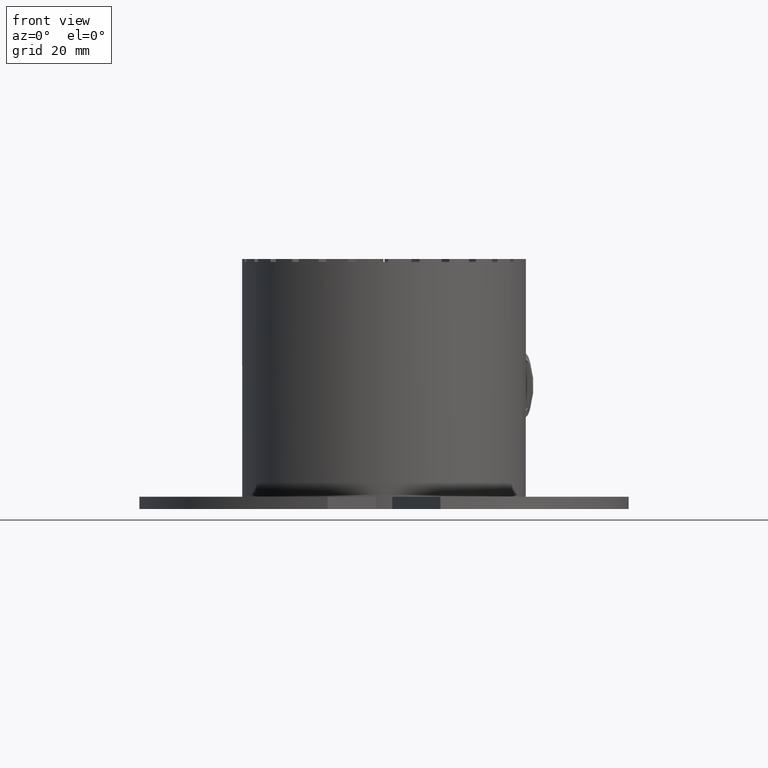
[diagram: clean part render]
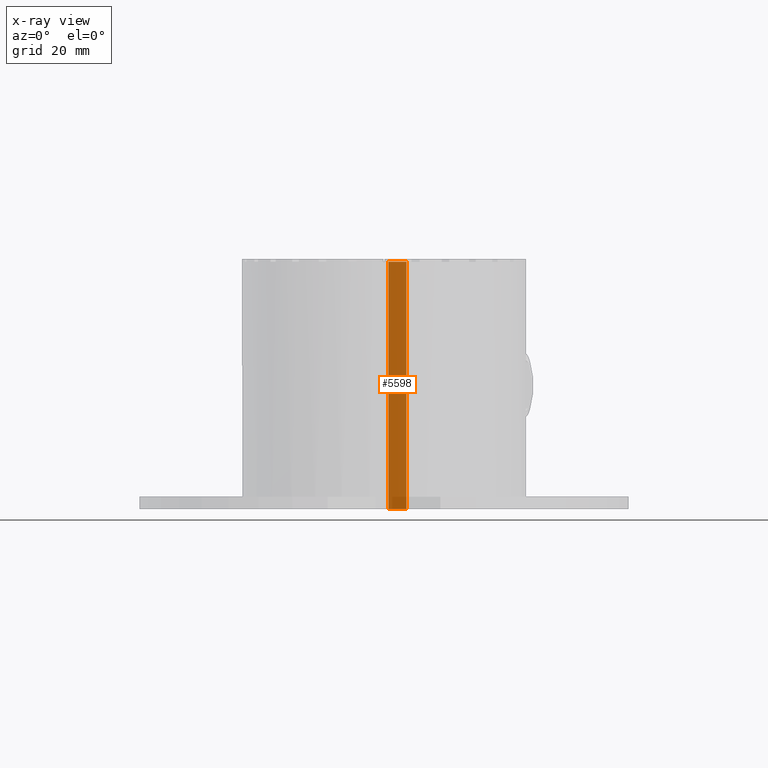
[diagram: x-ray — body ghosted, one internal face saturated and labeled with its STEP entity id]
A machine part, front view, then the same camera in x-ray: the body is ghosted and one INTERNAL B-rep face — a face not visible from any outside direction — is saturated and labeled: STEP entity #5598.
In plain terms, the highlighted planar face has unit normal (0.1045, 0.9945, 0).
Its self-contained STEP definition (entity closure, byte-faithful):
#248=CARTESIAN_POINT('',(5.437105571213134,26.330888088100096,30.050000000000004));
#249=VERTEX_POINT('',#248);
#256=CARTESIAN_POINT('',(1.069663380249813,26.789924759648347,30.050000000000004));
#257=VERTEX_POINT('',#256);
#258=CARTESIAN_POINT('',(1.069663380249813,26.789924759648347,30.050000000000004));
#259=DIRECTION('',(0.994521895368273,-0.104528463267654,0.0));
#260=VECTOR('',#259,4.391499283528645);
#261=LINE('',#258,#260);
#262=EDGE_CURVE('',#257,#249,#261,.T.);
#5375=CARTESIAN_POINT('',(1.069663380249813,26.789924759648347,-30.050000000000004));
#5376=VERTEX_POINT('',#5375);
#5383=CARTESIAN_POINT('',(5.437105571213134,26.330888088100096,-30.050000000000004));
#5384=VERTEX_POINT('',#5383);
#5385=CARTESIAN_POINT('',(5.437105571213135,26.330888088100096,-30.050000000000004));
#5386=DIRECTION('',(-0.994521895368273,0.104528463267654,0.0));
#5387=VECTOR('',#5386,4.391499283528645);
#5388=LINE('',#5385,#5387);
#5389=EDGE_CURVE('',#5384,#5376,#5388,.T.);
#5571=CARTESIAN_POINT('',(1.069663380249813,26.789924759648347,30.050000000000004));
#5572=DIRECTION('',(0.0,0.0,-1.0));
#5573=VECTOR('',#5572,60.100000000000009);
#5574=LINE('',#5571,#5573);
#5575=EDGE_CURVE('',#257,#5376,#5574,.T.);
#5582=CARTESIAN_POINT('',(1.069663380249813,26.789924759648347,0.0));
#5583=DIRECTION('',(0.104528463267654,0.994521895368273,0.0));
#5584=DIRECTION('',(0.0,0.0,1.0));
#5585=AXIS2_PLACEMENT_3D('',#5582,#5583,#5584);
#5586=PLANE('',#5585);
#5587=ORIENTED_EDGE('',*,*,#262,.T.);
#5588=CARTESIAN_POINT('',(5.437105571213134,26.330888088100096,30.050000000000004));
#5589=DIRECTION('',(0.0,0.0,-1.0));
#5590=VECTOR('',#5589,60.100000000000009);
#5591=LINE('',#5588,#5590);
#5592=EDGE_CURVE('',#249,#5384,#5591,.T.);
#5593=ORIENTED_EDGE('',*,*,#5592,.T.);
#5594=ORIENTED_EDGE('',*,*,#5389,.T.);
#5595=ORIENTED_EDGE('',*,*,#5575,.F.);
#5596=EDGE_LOOP('',(#5587,#5593,#5594,#5595));
#5597=FACE_OUTER_BOUND('',#5596,.T.);
#5598=ADVANCED_FACE('',(#5597),#5586,.T.);